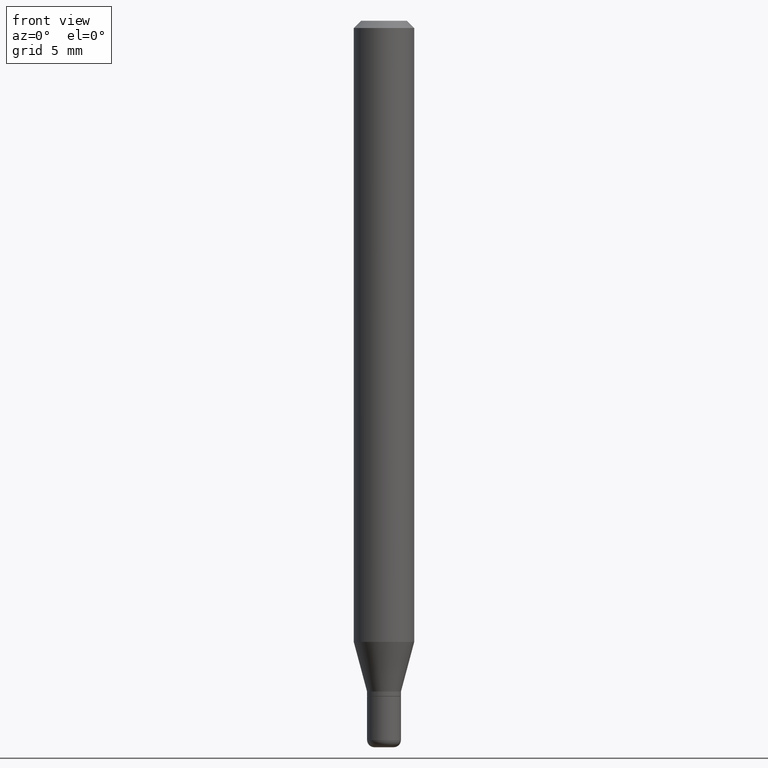
[diagram: clean part render]
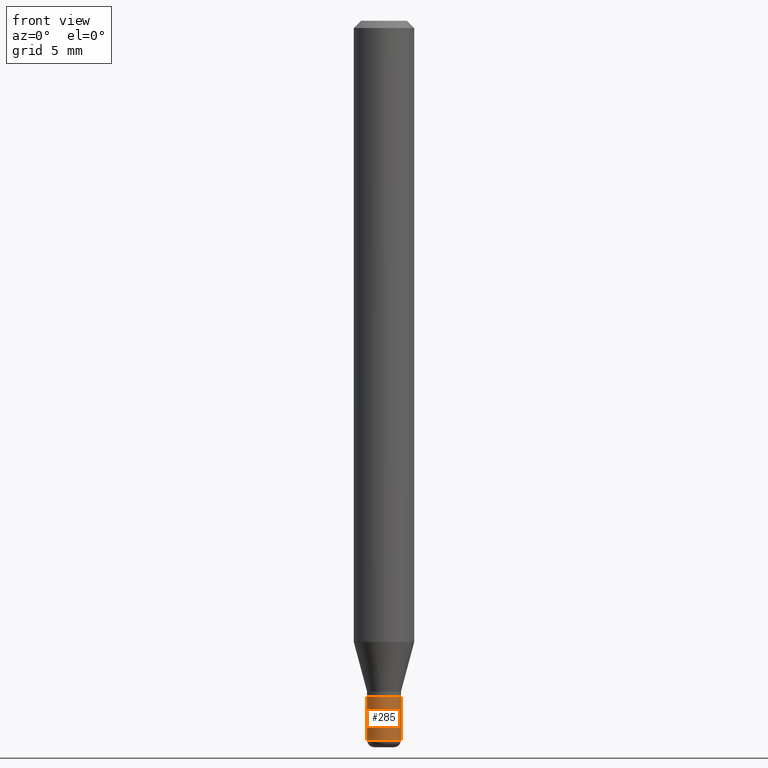
[diagram: same view with one face highlighted and labeled with its STEP entity id]
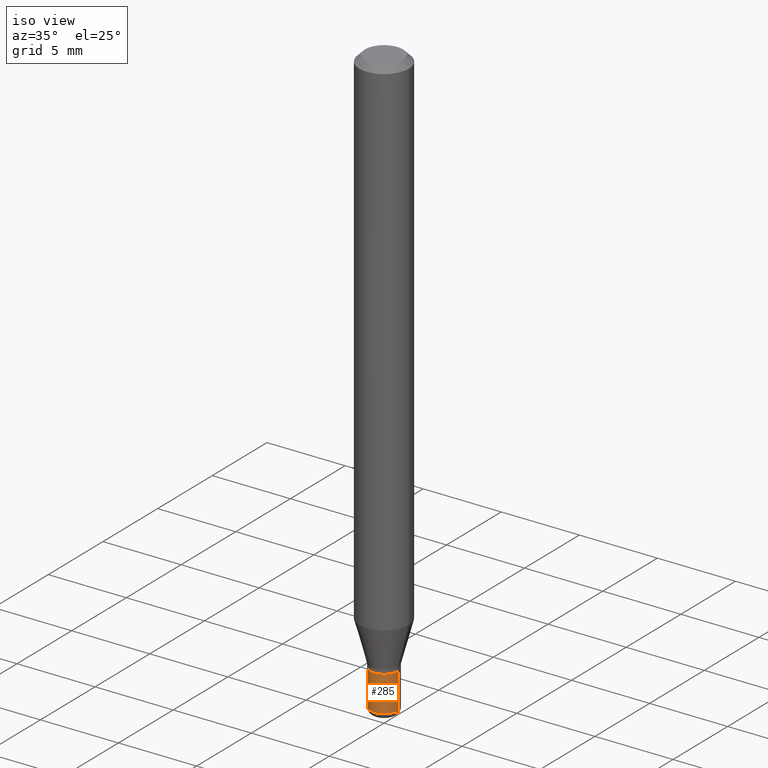
[diagram: same view with one face highlighted and labeled with its STEP entity id]
A machine part, front view. The second image highlights one B-rep face of the part: STEP entity #285.
A second angle (iso view) of the same face is appended — the face is thin or edge-on in the first view.
In plain terms, the highlighted cylindrical surface (edge-blend (fillet) strip) has radius 0.889 mm, axis along (-0, 0, 1).
Its self-contained STEP definition (entity closure, byte-faithful):
#17 = VERTEX_POINT ( 'NONE', #332 ) ;
#27 = VERTEX_POINT ( 'NONE', #128 ) ;
#35 = EDGE_CURVE ( 'NONE', #120, #17, #296, .T. ) ;
#42 = AXIS2_PLACEMENT_3D ( 'NONE', #74, #219, #273 ) ;
#46 = ORIENTED_EDGE ( 'NONE', *, *, #63, .F. ) ;
#56 = CIRCLE ( 'NONE', #278, 0.03499999999999998945 ) ;
#62 = CARTESIAN_POINT ( 'NONE',  ( 3.631521177184928138E-29, -5.184849788182071492E-15, -1.485000000000000098 ) ) ;
#63 = EDGE_CURVE ( 'NONE', #456, #17, #451, .T. ) ;
#74 = CARTESIAN_POINT ( 'NONE',  ( 0.000000000000000000, 0.000000000000000000, 0.000000000000000000 ) ) ;
#75 = ORIENTED_EDGE ( 'NONE', *, *, #35, .T. ) ;
#81 = EDGE_CURVE ( 'NONE', #27, #456, #142, .T. ) ;
#120 = VERTEX_POINT ( 'NONE', #318 ) ;
#128 = CARTESIAN_POINT ( 'NONE',  ( -0.03499999999999998945, -4.779043170418095363E-15, -1.485000000000000098 ) ) ;
#142 = LINE ( 'NONE', #477, #162 ) ;
#148 = CYLINDRICAL_SURFACE ( 'NONE', #42, 0.03499999999999999639 ) ;
#162 = VECTOR ( 'NONE', #427, 39.37007874015748143 ) ;
#183 = CARTESIAN_POINT ( 'NONE',  ( 3.411428984628265351E-29, -4.870616467686188228E-15, -1.395000000000000018 ) ) ;
#209 = ORIENTED_EDGE ( 'NONE', *, *, #345, .T. ) ;
#219 = DIRECTION ( 'NONE',  ( -2.445468806185136597E-29, 3.491481338843145583E-15, 1.000000000000000000 ) ) ;
#242 = CARTESIAN_POINT ( 'NONE',  ( 0.03499999999999999639, -2.444036937190192757E-16, 1.706661871528577457E-30 ) ) ;
#273 = DIRECTION ( 'NONE',  ( 1.000000000000000000, -6.982962677686265922E-15, 4.876176775795936353E-29 ) ) ;
#278 = AXIS2_PLACEMENT_3D ( 'NONE', #62, #496, #370 ) ;
#285 = ADVANCED_FACE ( 'NONE', ( #397 ), #148, .T. ) ;
#296 = LINE ( 'NONE', #242, #435 ) ;
#318 = CARTESIAN_POINT ( 'NONE',  ( 0.03499999999999998945, -5.429253481901091458E-15, -1.485000000000000098 ) ) ;
#332 = CARTESIAN_POINT ( 'NONE',  ( 0.03500000000000000333, -5.115020161405208194E-15, -1.395000000000000018 ) ) ;
#345 = EDGE_CURVE ( 'NONE', #27, #120, #56, .T. ) ;
#353 = DIRECTION ( 'NONE',  ( 1.000000000000000000, -6.982962677686276966E-15, 0.000000000000000000 ) ) ;
#359 = DIRECTION ( 'NONE',  ( -2.445468806185136597E-29, 3.491481338843145583E-15, 1.000000000000000000 ) ) ;
#370 = DIRECTION ( 'NONE',  ( 1.000000000000000000, -6.982962677686280121E-15, 0.000000000000000000 ) ) ;
#372 = EDGE_LOOP ( 'NONE', ( #382, #209, #75, #46 ) ) ;
#382 = ORIENTED_EDGE ( 'NONE', *, *, #81, .F. ) ;
#394 = AXIS2_PLACEMENT_3D ( 'NONE', #183, #359, #353 ) ;
#397 = FACE_OUTER_BOUND ( 'NONE', #372, .T. ) ;
#420 = CARTESIAN_POINT ( 'NONE',  ( -0.03500000000000000333, -4.779043170418095363E-15, -1.395000000000000018 ) ) ;
#427 = DIRECTION ( 'NONE',  ( -2.445468806185136877E-29, 3.491481338843145188E-15, 1.000000000000000000 ) ) ;
#435 = VECTOR ( 'NONE', #453, 39.37007874015748143 ) ;
#451 = CIRCLE ( 'NONE', #394, 0.03500000000000000333 ) ;
#453 = DIRECTION ( 'NONE',  ( -2.445468806185136877E-29, 3.491481338843145188E-15, 1.000000000000000000 ) ) ;
#456 = VERTEX_POINT ( 'NONE', #420 ) ;
#477 = CARTESIAN_POINT ( 'NONE',  ( -0.03499999999999999639, 2.486899575160350394E-16, -1.721627281589216757E-30 ) ) ;
#496 = DIRECTION ( 'NONE',  ( -2.445468806185136597E-29, 3.491481338843145583E-15, 1.000000000000000000 ) ) ;